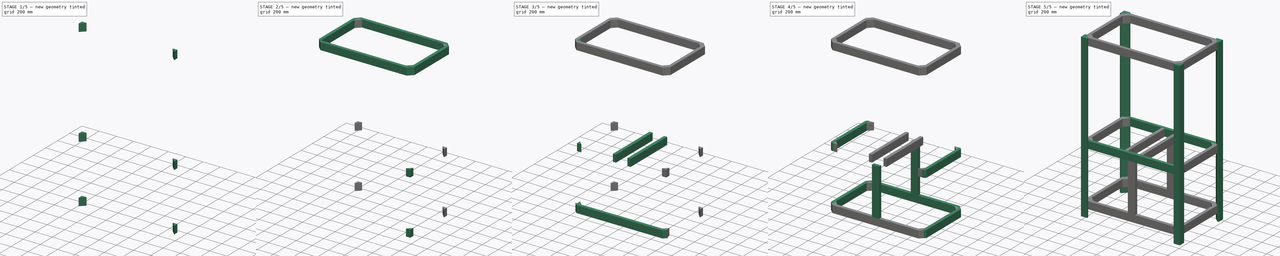
[diagram: build sequence overview — one tinted view per stage of 5, left to right]
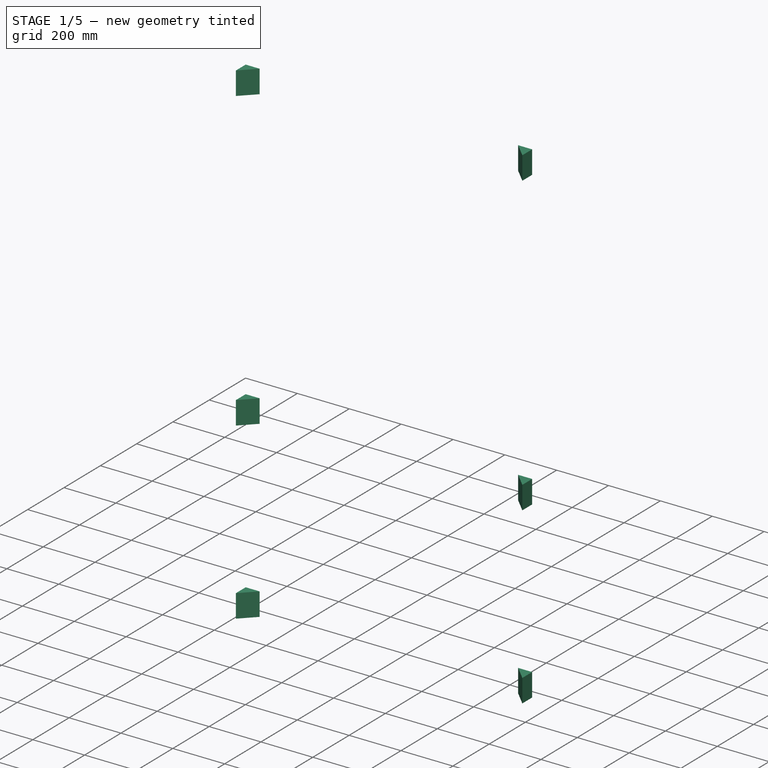
[diagram: stage 1 of 5 — iso view after this stage's code; geometry added in this stage tinted green]
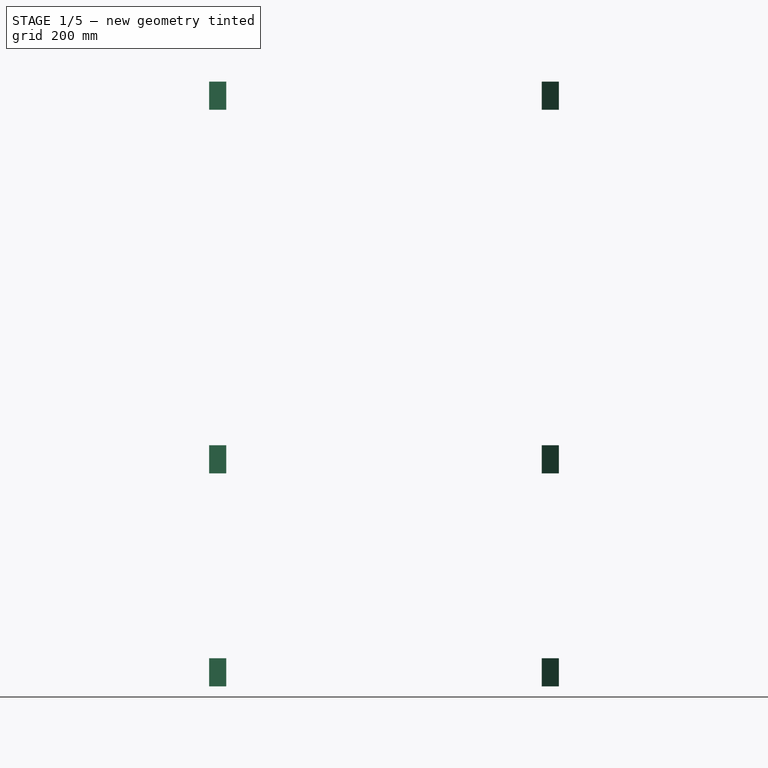
[diagram: stage 1 of 5 — front view after this stage's code; geometry added in this stage tinted green]
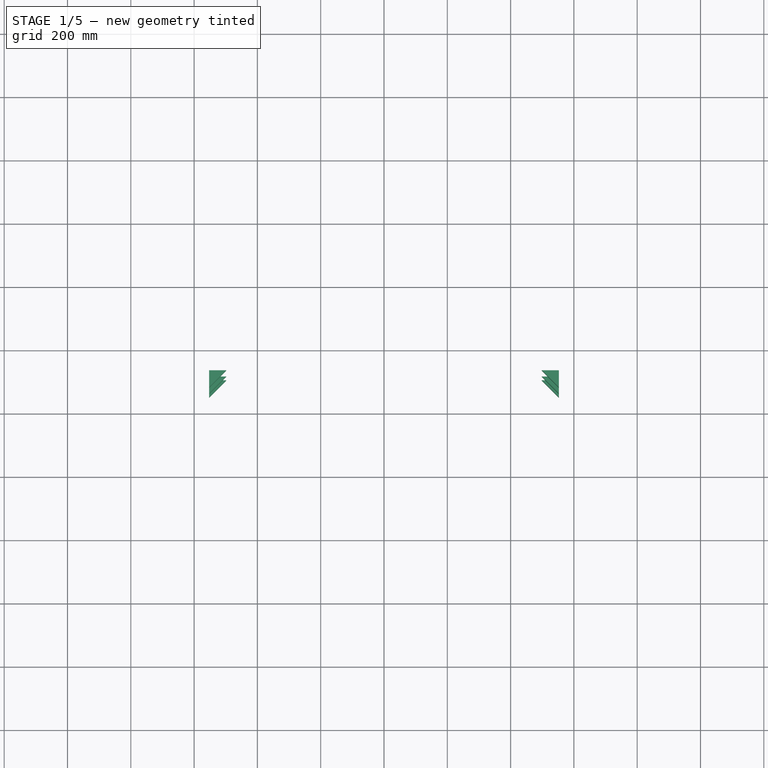
[diagram: stage 1 of 5 — top view after this stage's code; geometry added in this stage tinted green]
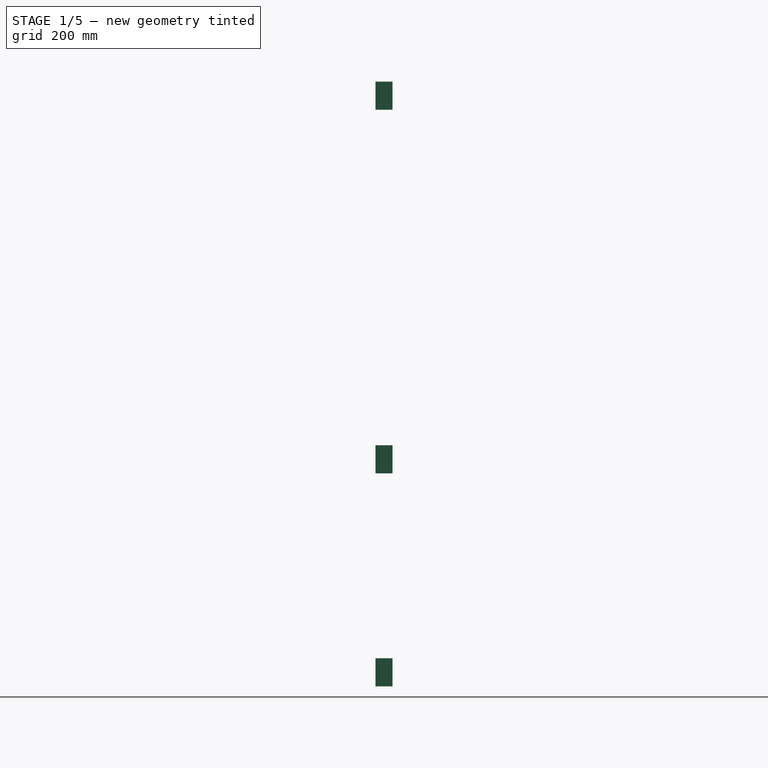
[diagram: stage 1 of 5 — right view after this stage's code; geometry added in this stage tinted green]
FCSTD DOCUMENT  (FreeCAD 0.16R6039 (Git))
Label: MiniMill Enclosure
License: CreativeCommons Attribution-ShareAlike
LicenseURL: http://creativecommons.org/licenses/by-sa/4.0/
objects: Sketcher::SketchObject×32, PartDesign::Pad×32, App::DocumentObjectGroup×3
note: 96 computed .brp shape members not serialized (recipe doc carries the construction recipe); baked Part::Feature solids carry a one-line shape summary decoded from their .brp

FEATURE [Sketcher::SketchObject] Sketch040
  Placement = pos=(0,0,88.9) rot=(0,0,1;0rad)
  sketch-geometry (3):
    g0: LineSegment StartX=-552.45 StartY=704.85 StartZ=0 EndX=-552.45 EndY=650.968 EndZ=0
    g1: LineSegment StartX=-552.45 StartY=650.968 StartZ=0 EndX=-498.568 EndY=704.85 EndZ=0
    g2: LineSegment StartX=-498.568 StartY=704.85 StartZ=0 EndX=-552.45 EndY=704.85 EndZ=0
  constraints (9):
    c: Coincident(g0,g1)
    c: Coincident(g1,g2)
    c: Coincident(g0,g2)
    c: Horizontal(g2)
    c: Vertical(g0)
    c: Equal(g0,g2)
    c: Distance(g0,g1) = 38.1
    c: DistanceX(g-1,g0) = -552.45
    c: DistanceY(g-1,g0) = 704.85
FEATURE [PartDesign::Pad] Pad041  label="Lower Back Left Corner Brace"
  Length = 88.9
  Length2 = 100
  Placement = pos=(0,0,88.9) rot=(0,0,1;0rad)
  Sketch = -> Sketch040
  Type = 0
FEATURE [Sketcher::SketchObject] Sketch041
  Placement = pos=(0,0,762) rot=(0,0,1;0rad)
  sketch-geometry (3):
    g0: LineSegment StartX=-552.45 StartY=704.85 StartZ=0 EndX=-552.45 EndY=650.968 EndZ=0
    g1: LineSegment StartX=-552.45 StartY=650.968 StartZ=0 EndX=-498.568 EndY=704.85 EndZ=0
    g2: LineSegment StartX=-498.568 StartY=704.85 StartZ=0 EndX=-552.45 EndY=704.85 EndZ=0
  constraints (9):
    c: Coincident(g0,g1)
    c: Coincident(g1,g2)
    c: Coincident(g0,g2)
    c: Horizontal(g2)
    c: Vertical(g0)
    c: Equal(g0,g2)
    c: Distance(g0,g1) = 38.1
    c: DistanceX(g-1,g0) = -552.45
    c: DistanceY(g-1,g0) = 704.85
FEATURE [PartDesign::Pad] Pad042  label="Mid Back Left Corner Brace"
  Length = 88.9
  Length2 = 100
  Placement = pos=(0,0,762) rot=(0,0,1;0rad)
  Sketch = -> Sketch041
  Type = 0
FEATURE [Sketcher::SketchObject] Sketch042
  Placement = pos=(0,0,1911) rot=(0,0,1;0rad)
  sketch-geometry (3):
    g0: LineSegment StartX=-552.45 StartY=704.85 StartZ=0 EndX=-552.45 EndY=650.968 EndZ=0
    g1: LineSegment StartX=-552.45 StartY=650.968 StartZ=0 EndX=-498.568 EndY=704.85 EndZ=0
    g2: LineSegment StartX=-498.568 StartY=704.85 StartZ=0 EndX=-552.45 EndY=704.85 EndZ=0
  constraints (9):
    c: Coincident(g0,g1)
    c: Coincident(g1,g2)
    c: Coincident(g0,g2)
    c: Horizontal(g2)
    c: Vertical(g0)
    c: Equal(g0,g2)
    c: Distance(g0,g1) = 38.1
    c: DistanceX(g-1,g0) = -552.45
    c: DistanceY(g-1,g0) = 704.85
FEATURE [PartDesign::Pad] Pad043  label="Top Back Left Corner Brace"
  Length = 88.9
  Length2 = 100
  Placement = pos=(0,0,1911) rot=(0,0,1;0rad)
  Sketch = -> Sketch042
  Type = 0
FEATURE [Sketcher::SketchObject] Sketch044
  Placement = pos=(0,0,88.9) rot=(0,0,1;0rad)
  sketch-geometry (3):
    g0: LineSegment StartX=498.568 StartY=704.85 StartZ=0 EndX=552.45 EndY=704.85 EndZ=0
    g1: LineSegment StartX=552.45 StartY=704.85 StartZ=0 EndX=552.45 EndY=650.968 EndZ=0
    g2: LineSegment StartX=552.45 StartY=650.968 StartZ=0 EndX=498.568 EndY=704.85 EndZ=0
  constraints (9):
    c: Coincident(g0,g1)
    c: Coincident(g1,g2)
    c: Coincident(g2,g0)
    c: Horizontal(g0)
    c: Vertical(g1)
    c: Equal(g0,g1)
    c: Distance(g0,g2) = 38.1
    c: DistanceX(g-1,g0) = 552.45
    c: DistanceY(g-1,g0) = 704.85
FEATURE [PartDesign::Pad] Pad045  label="Lower Back Right Corner Brace"
  Length = 88.9
  Length2 = 100
  Placement = pos=(0,0,88.9) rot=(0,0,1;0rad)
  Sketch = -> Sketch044
  Type = 0
FEATURE [App::DocumentObjectGroup] Group001  label="Lower Platform"
  Group = -> [Pad018,Pad020,Pad021,Pad023,Pad029,Pad039,Pad041,Pad045]
FEATURE [Sketcher::SketchObject] Sketch045
  Placement = pos=(0,0,762) rot=(0,0,1;0rad)
  sketch-geometry (3):
    g0: LineSegment StartX=498.568 StartY=704.85 StartZ=0 EndX=552.45 EndY=704.85 EndZ=0
    g1: LineSegment StartX=552.45 StartY=704.85 StartZ=0 EndX=552.45 EndY=650.968 EndZ=0
    g2: LineSegment StartX=552.45 StartY=650.968 StartZ=0 EndX=498.568 EndY=704.85 EndZ=0
  constraints (9):
    c: Coincident(g0,g1)
    c: Coincident(g1,g2)
    c: Coincident(g2,g0)
    c: Horizontal(g0)
    c: Vertical(g1)
    c: Equal(g0,g1)
    c: Distance(g0,g2) = 38.1
    c: DistanceX(g-1,g0) = 552.45
    c: DistanceY(g-1,g0) = 704.85
FEATURE [PartDesign::Pad] Pad046  label="Mid Back Right Corner Brace"
  Length = 88.9
  Length2 = 100
  Placement = pos=(0,0,762) rot=(0,0,1;0rad)
  Sketch = -> Sketch045
  Type = 0
FEATURE [App::DocumentObjectGroup] Group  label="Mill Base"
  Group = -> [Pad009,Pad010,Pad013,Pad015,Pad026,Pad027,Pad030,Pad038,Pad042,Pad046]
FEATURE [Sketcher::SketchObject] Sketch046
  Placement = pos=(0,0,1911) rot=(0,0,1;0rad)
  sketch-geometry (3):
    g0: LineSegment StartX=498.568 StartY=704.85 StartZ=0 EndX=552.45 EndY=704.85 EndZ=0
    g1: LineSegment StartX=552.45 StartY=704.85 StartZ=0 EndX=552.45 EndY=650.968 EndZ=0
    g2: LineSegment StartX=552.45 StartY=650.968 StartZ=0 EndX=498.568 EndY=704.85 EndZ=0
  constraints (9):
    c: Coincident(g0,g1)
    c: Coincident(g1,g2)
    c: Coincident(g2,g0)
    c: Horizontal(g0)
    c: Vertical(g1)
    c: Equal(g0,g1)
    c: Distance(g0,g2) = 38.1
    c: DistanceX(g-1,g0) = 552.45
    c: DistanceY(g-1,g0) = 704.85
FEATURE [PartDesign::Pad] Pad047  label="Top Back Right Corner Brace"
  Length = 88.9
  Length2 = 100
  Placement = pos=(0,0,1911) rot=(0,0,1;0rad)
  Sketch = -> Sketch046
  Type = 0
FEATURE [App::DocumentObjectGroup] Group002  label="Top Platform"
  Group = -> [Pad031,Pad032,Pad033,Pad034,Pad035,Pad037,Pad043,Pad047]
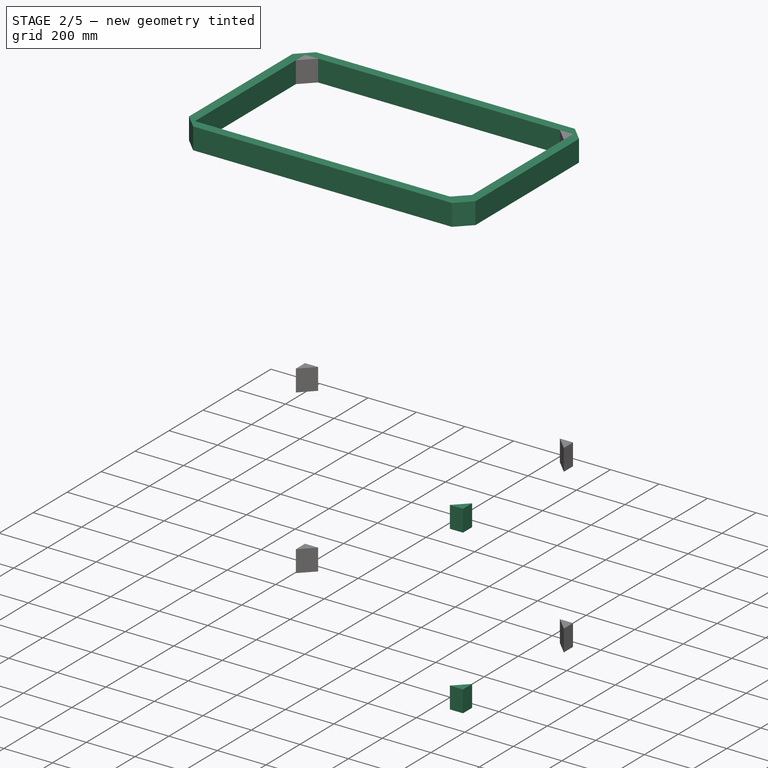
[diagram: stage 2 of 5 — iso view after this stage's code; geometry added in this stage tinted green]
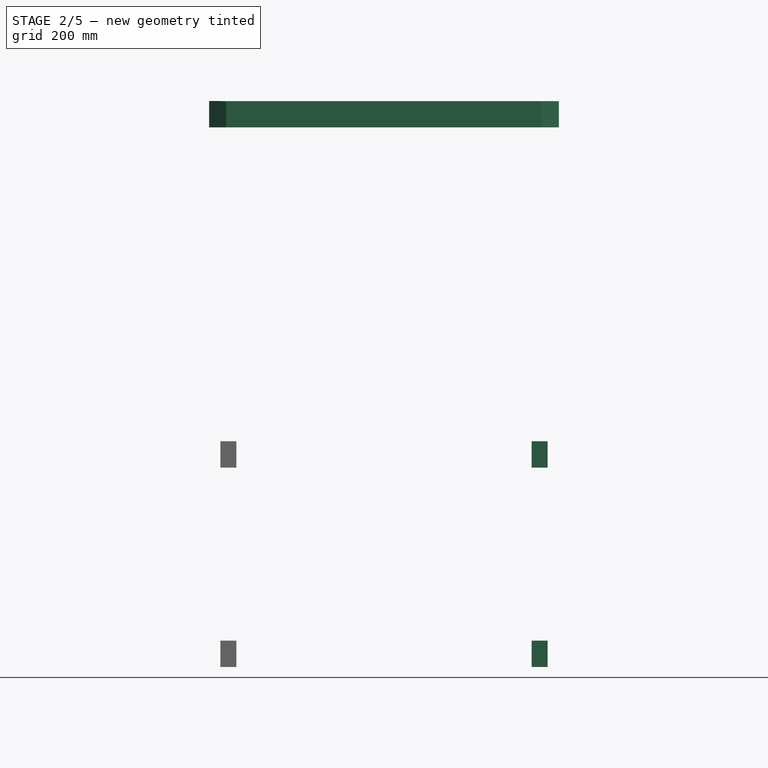
[diagram: stage 2 of 5 — front view after this stage's code; geometry added in this stage tinted green]
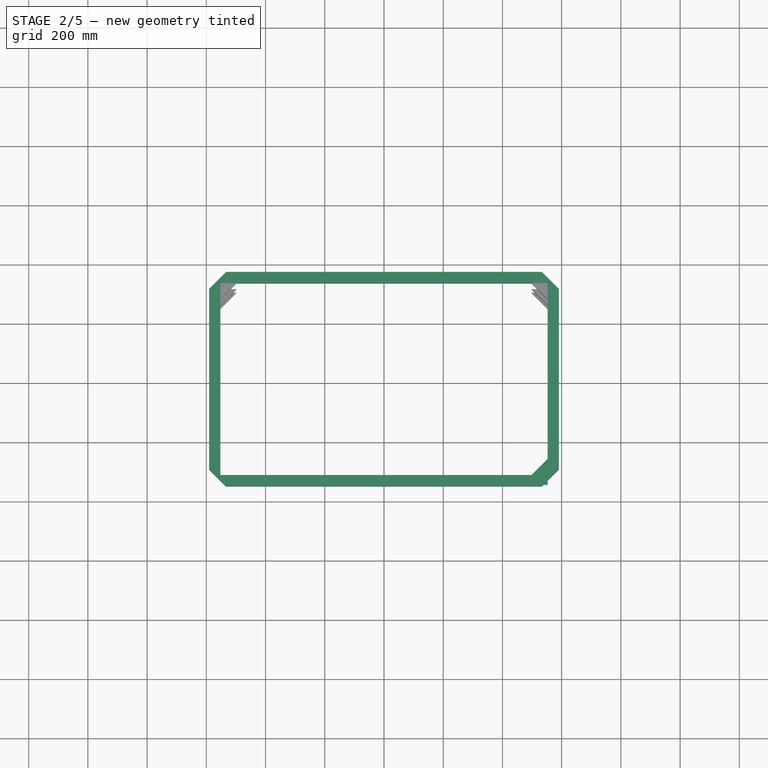
[diagram: stage 2 of 5 — top view after this stage's code; geometry added in this stage tinted green]
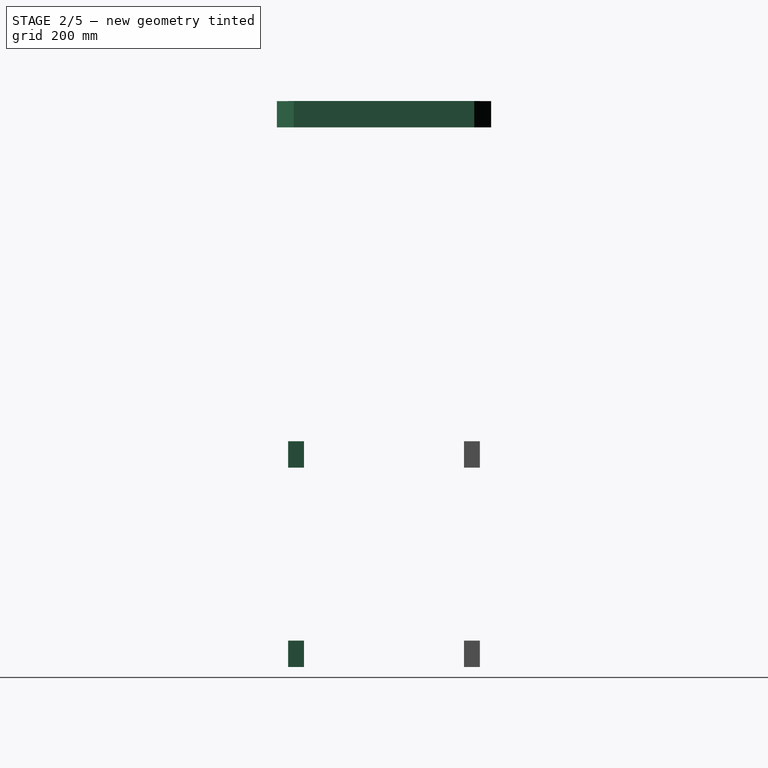
[diagram: stage 2 of 5 — right view after this stage's code; geometry added in this stage tinted green]
FEATURE [Sketcher::SketchObject] Sketch031
  Placement = pos=(0,0,1911) rot=(0,0,1;0rad)
  sketch-geometry (4):
    g0: LineSegment StartX=-571.5 StartY=57.15 StartZ=0 EndX=-533.4 EndY=19.05 EndZ=0
    g1: LineSegment StartX=-533.4 StartY=19.05 StartZ=0 EndX=533.4 EndY=19.05 EndZ=0
    g2: LineSegment StartX=533.4 StartY=19.05 StartZ=0 EndX=571.5 EndY=57.15 EndZ=0
    g3: LineSegment StartX=571.5 StartY=57.15 StartZ=0 EndX=-571.5 EndY=57.15 EndZ=0
  constraints (12):
    c: Coincident(g0,g1)
    c: Coincident(g1,g2)
    c: Coincident(g2,g3)
    c: Coincident(g3,g0)
    c: Horizontal(g1)
    c: Horizontal(g3)
    c: Symmetric(g0,g1,g-2)
    c: Angle(g2,g-1) = 2.35619
    c: Angle(g-1,g0) = 2.35619
    c: DistanceX(g1) = 1066.8
    c: DistanceY(g-1,g0) = 19.05
    c: DistanceY(g1,g2) = 38.1
FEATURE [PartDesign::Pad] Pad032  label="Top Front"
  Length = 88.9
  Length2 = 100
  Placement = pos=(0,0,1911) rot=(0,0,1;0rad)
  Sketch = -> Sketch031
  Type = 0
FEATURE [Sketcher::SketchObject] Sketch032
  Placement = pos=(0,0,1911) rot=(0,0,1;0rad)
  sketch-geometry (4):
    g0: LineSegment StartX=-533.4 StartY=742.95 StartZ=0 EndX=-571.5 EndY=704.85 EndZ=0
    g1: LineSegment StartX=-571.5 StartY=704.85 StartZ=0 EndX=571.5 EndY=704.85 EndZ=0
    g2: LineSegment StartX=571.5 StartY=704.85 StartZ=0 EndX=533.4 EndY=742.95 EndZ=0
    g3: LineSegment StartX=533.4 StartY=742.95 StartZ=0 EndX=-533.4 EndY=742.95 EndZ=0
  constraints (12):
    c: Coincident(g0,g1)
    c: Coincident(g1,g2)
    c: Coincident(g2,g3)
    c: Coincident(g3,g0)
    c: Horizontal(g1)
    c: Horizontal(g3)
    c: Symmetric(g0,g1,g-2)
    c: Angle(g2,g-1) = 0.785398
    c: Angle(g-1,g0) = 0.785398
    c: DistanceY(g1,g2) = 38.1
    c: DistanceY(g-1,g2) = 742.95
    c: DistanceX(g3) = -1066.8
FEATURE [PartDesign::Pad] Pad033  label="Top  Back"
  Length = 88.9
  Length2 = 100
  Placement = pos=(0,0,1911) rot=(0,0,1;0rad)
  Sketch = -> Sketch032
  Type = 0
FEATURE [Sketcher::SketchObject] Sketch033
  Placement = pos=(0,0,1911) rot=(0,0,1;0rad)
  sketch-geometry (6):
    g0: LineSegment StartX=-590.55 StartY=685.8 StartZ=0 EndX=-590.55 EndY=76.2 EndZ=0
    g1: LineSegment StartX=-552.45 StartY=57.15 StartZ=0 EndX=-552.45 EndY=704.85 EndZ=0
    g2: LineSegment StartX=-552.45 StartY=704.85 StartZ=0 EndX=-571.5 EndY=704.85 EndZ=0
    g3: LineSegment StartX=-571.5 StartY=704.85 StartZ=0 EndX=-590.55 EndY=685.8 EndZ=0
    g4: LineSegment StartX=-590.55 StartY=76.2 StartZ=0 EndX=-571.5 EndY=57.15 EndZ=0
    g5: LineSegment StartX=-571.5 StartY=57.15 StartZ=0 EndX=-552.45 EndY=57.15 EndZ=0
  constraints (18):
    c: Vertical(g0)
    c: Vertical(g1)
    c: DistanceY(g1) = 647.7
    c: DistanceY(g-1,g0) = 76.2
    c: Coincident(g2,g3)
    c: Coincident(g0,g3)
    c: Coincident(g2,g1)
    c: Horizontal(g2)
    c: Angle(g0,g3) = 2.35619
    c: DistanceX(g-1,g0) = -590.55
    c: DistanceY(g-1,g0) = 685.8
    c: Coincident(g4,g5)
    c: Horizontal(g5)
    c: Coincident(g1,g5)
    c: Coincident(g4,g0)
    c: Angle(g4,g0) = 2.35619
    c: DistanceX(g1,g0) = -38.1
    c: DistanceY(g-1,g1) = 57.15
FEATURE [PartDesign::Pad] Pad034  label="Top Left"
  Length = 89
  Length2 = 100
  Placement = pos=(0,0,1911) rot=(0,0,1;0rad)
  Sketch = -> Sketch033
  Type = 0
FEATURE [Sketcher::SketchObject] Sketch034
  Placement = pos=(0,0,1911) rot=(0,0,1;0rad)
  sketch-geometry (6):
    g0: LineSegment StartX=552.45 StartY=704.85 StartZ=0 EndX=571.5 EndY=704.85 EndZ=0
    g1: LineSegment StartX=571.5 StartY=704.85 StartZ=0 EndX=590.55 EndY=685.8 EndZ=0
    g2: LineSegment StartX=590.55 StartY=685.8 StartZ=0 EndX=590.55 EndY=76.2 EndZ=0
    g3: LineSegment StartX=590.55 StartY=76.2 StartZ=0 EndX=571.5 EndY=57.15 EndZ=0
    g4: LineSegment StartX=571.5 StartY=57.15 StartZ=0 EndX=552.45 EndY=57.15 EndZ=0
    g5: LineSegment StartX=552.45 StartY=57.15 StartZ=0 EndX=552.45 EndY=704.85 EndZ=0
  constraints (18):
    c: Coincident(g0,g1)
    c: Coincident(g1,g2)
    c: Coincident(g2,g3)
    c: Coincident(g3,g4)
    c: Coincident(g4,g5)
    c: Coincident(g5,g0)
    c: Vertical(g5)
    c: Vertical(g2)
    c: Horizontal(g0)
    c: Horizontal(g4)
    c: Angle(g0,g1) = 2.35619
    c: Angle(g3,g4) = 2.35619
    c: DistanceX(g-1,g2) = 590.55
    c: DistanceX(g4,g2) = 38.1
    c: DistanceY(g-1,g4) = 57.15
    c: DistanceY(g2) = 76.2
    c: DistanceY(g-1,g0) = 704.85
    c: DistanceY(g-1,g1) = 685.8
FEATURE [PartDesign::Pad] Pad035  label="Top Right Side"
  Length = 88.9
  Length2 = 100
  Placement = pos=(0,0,1911) rot=(0,0,1;0rad)
  Sketch = -> Sketch034
  Type = 0
FEATURE [Sketcher::SketchObject] Sketch036
  Placement = pos=(0,0,1911) rot=(0,0,1;0rad)
  sketch-geometry (3):
    g0: LineSegment StartX=552.45 StartY=111.032 StartZ=0 EndX=552.45 EndY=57.15 EndZ=0
    g1: LineSegment StartX=552.45 StartY=57.15 StartZ=0 EndX=498.568 EndY=57.15 EndZ=0
    g2: LineSegment StartX=498.568 StartY=57.15 StartZ=0 EndX=552.45 EndY=111.032 EndZ=0
  constraints (9):
    c: Coincident(g0,g1)
    c: Coincident(g1,g2)
    c: Coincident(g2,g0)
    c: Vertical(g0)
    c: Horizontal(g1)
    c: Equal(g1,g0)
    c: Distance(g0,g2) = 38.1
    c: DistanceX(g-1,g0) = 552.45
    c: DistanceY(g-1,g0) = 57.15
FEATURE [PartDesign::Pad] Pad037  label="Top Right Corner Brace"
  Length = 88.9
  Length2 = 100
  Placement = pos=(0,0,1911) rot=(0,0,1;0rad)
  Sketch = -> Sketch036
  Type = 0
FEATURE [Sketcher::SketchObject] Sketch037
  Placement = pos=(0,0,762) rot=(0,0,1;0rad)
  sketch-geometry (3):
    g0: LineSegment StartX=552.45 StartY=111.032 StartZ=0 EndX=552.45 EndY=57.15 EndZ=0
    g1: LineSegment StartX=552.45 StartY=57.15 StartZ=0 EndX=498.568 EndY=57.15 EndZ=0
    g2: LineSegment StartX=498.568 StartY=57.15 StartZ=0 EndX=552.45 EndY=111.032 EndZ=0
  constraints (9):
    c: Coincident(g0,g1)
    c: Coincident(g1,g2)
    c: Coincident(g2,g0)
    c: Vertical(g0)
    c: Horizontal(g1)
    c: Equal(g1,g0)
    c: Distance(g0,g2) = 38.1
    c: DistanceX(g-1,g0) = 552.45
    c: DistanceY(g-1,g0) = 57.15
FEATURE [PartDesign::Pad] Pad038  label="Mid Right Front Corner Brace"
  Length = 88.9
  Length2 = 100
  Placement = pos=(0,0,762) rot=(0,0,1;0rad)
  Sketch = -> Sketch037
  Type = 0
FEATURE [Sketcher::SketchObject] Sketch038
  Placement = pos=(0,0,88.9) rot=(0,0,1;0rad)
  sketch-geometry (3):
    g0: LineSegment StartX=552.45 StartY=111.032 StartZ=0 EndX=552.45 EndY=57.15 EndZ=0
    g1: LineSegment StartX=552.45 StartY=57.15 StartZ=0 EndX=498.568 EndY=57.15 EndZ=0
    g2: LineSegment StartX=498.568 StartY=57.15 StartZ=0 EndX=552.45 EndY=111.032 EndZ=0
  constraints (9):
    c: Coincident(g0,g1)
    c: Coincident(g1,g2)
    c: Coincident(g2,g0)
    c: Vertical(g0)
    c: Horizontal(g1)
    c: Equal(g1,g0)
    c: Distance(g0,g2) = 38.1
    c: DistanceX(g-1,g0) = 552.45
    c: DistanceY(g-1,g0) = 57.15
FEATURE [PartDesign::Pad] Pad039  label="Lower Right Front Corner Brace"
  Length = 88.9
  Length2 = 100
  Placement = pos=(0,0,88.9) rot=(0,0,1;0rad)
  Sketch = -> Sketch038
  Type = 0
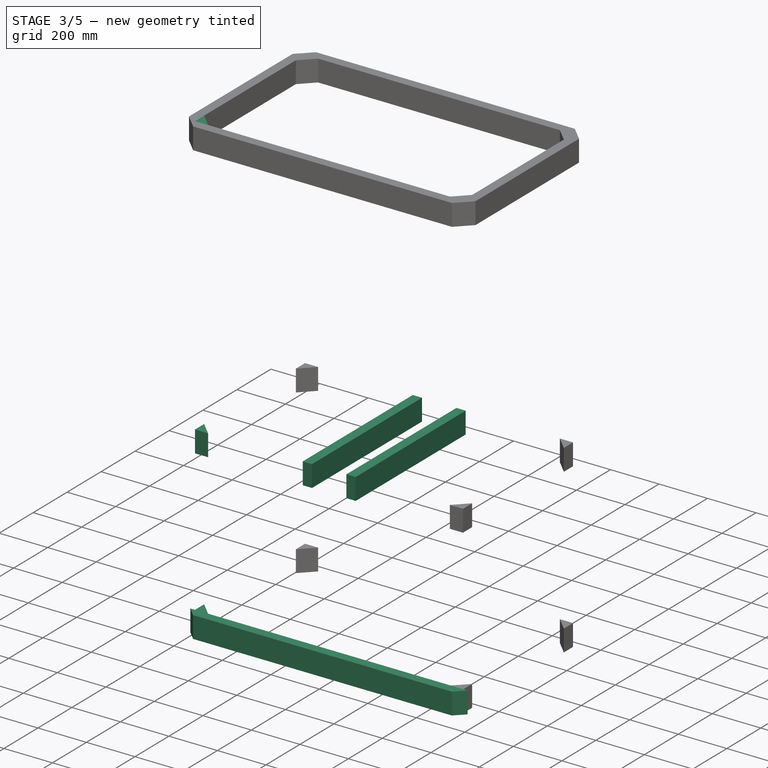
[diagram: stage 3 of 5 — iso view after this stage's code; geometry added in this stage tinted green]
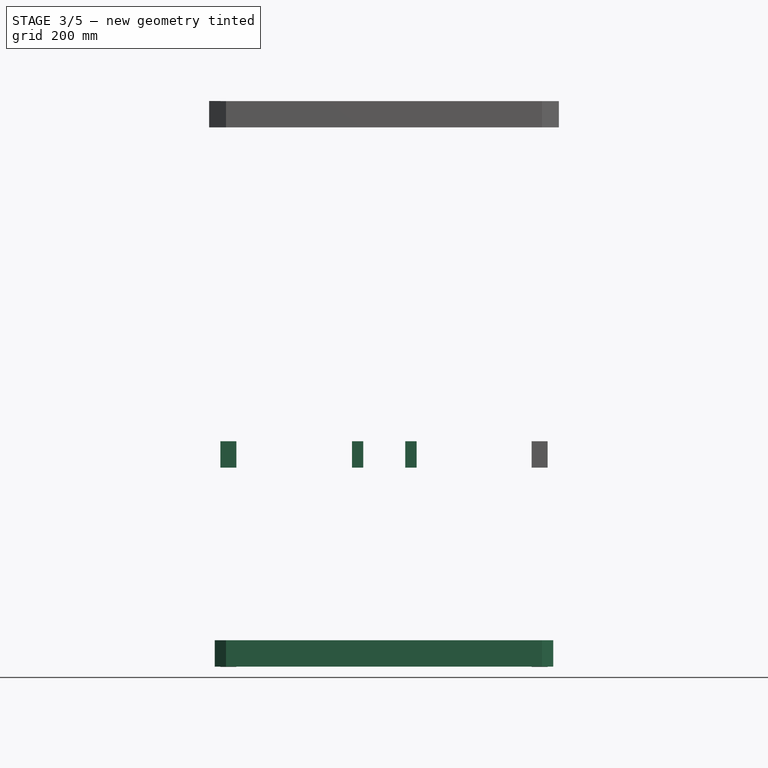
[diagram: stage 3 of 5 — front view after this stage's code; geometry added in this stage tinted green]
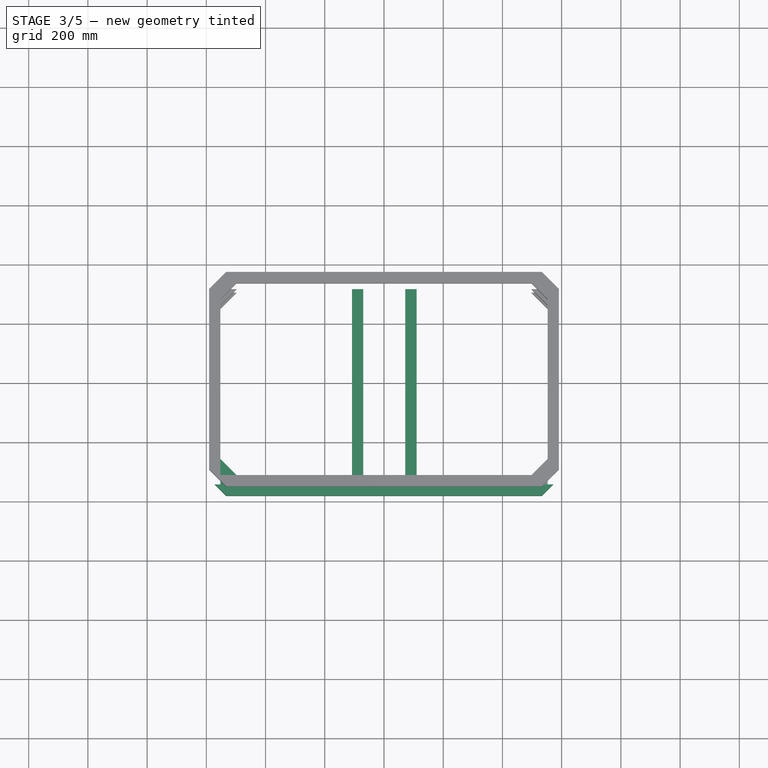
[diagram: stage 3 of 5 — top view after this stage's code; geometry added in this stage tinted green]
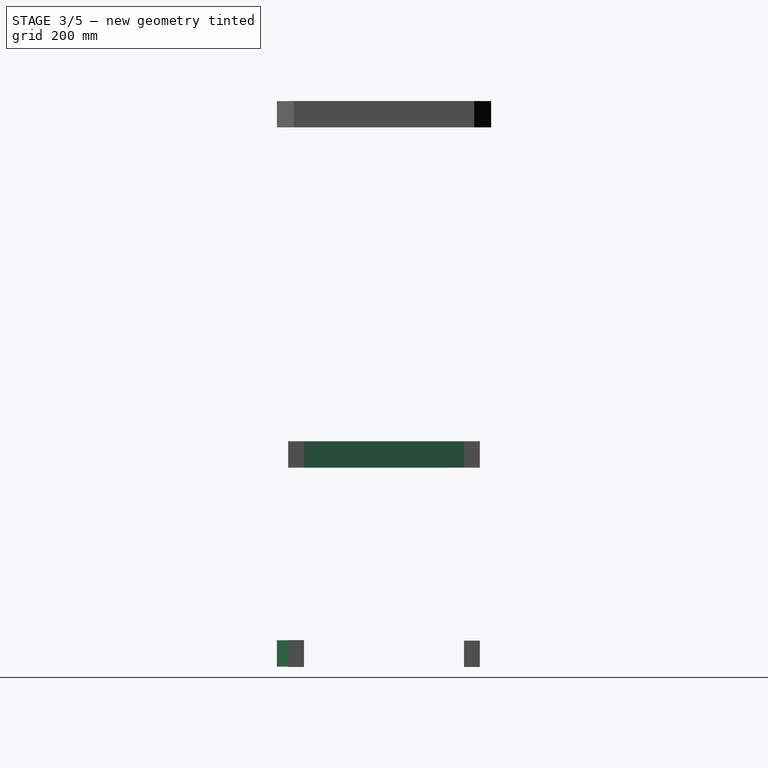
[diagram: stage 3 of 5 — right view after this stage's code; geometry added in this stage tinted green]
FEATURE [Sketcher::SketchObject] Sketch022
  Placement = pos=(0,0,90) rot=(0,0,1;0rad)
  sketch-geometry (4):
    g0: LineSegment StartX=-571.5 StartY=57.15 StartZ=0 EndX=-533.4 EndY=19.05 EndZ=0
    g1: LineSegment StartX=-533.4 StartY=19.05 StartZ=0 EndX=533.4 EndY=19.05 EndZ=0
    g2: LineSegment StartX=533.4 StartY=19.05 StartZ=0 EndX=571.5 EndY=57.15 EndZ=0
    g3: LineSegment StartX=571.5 StartY=57.15 StartZ=0 EndX=-571.5 EndY=57.15 EndZ=0
  constraints (12):
    c: Coincident(g0,g1)
    c: Coincident(g1,g2)
    c: Coincident(g2,g3)
    c: Coincident(g3,g0)
    c: Horizontal(g1)
    c: Horizontal(g3)
    c: Symmetric(g0,g1,g-2)
    c: Angle(g2,g-1) = 2.35619
    c: Angle(g-1,g0) = 2.35619
    c: DistanceX(g1) = 1066.8
    c: DistanceY(g-1,g0) = 19.05
    c: DistanceY(g1,g2) = 38.1
FEATURE [PartDesign::Pad] Pad023  label="Lower Front"
  Length = 88.9
  Length2 = 100
  Placement = pos=(0,0,90) rot=(0,0,1;0rad)
  Sketch = -> Sketch022
  Type = 0
FEATURE [Sketcher::SketchObject] Sketch025
  Placement = pos=(0,0,762) rot=(0,0,1;0rad)
  sketch-geometry (4):
    g0: LineSegment StartX=-108.1 StartY=704.85 StartZ=0 EndX=-70 EndY=704.85 EndZ=0
    g1: LineSegment StartX=-70 StartY=704.85 StartZ=0 EndX=-70 EndY=57.15 EndZ=0
    g2: LineSegment StartX=-70 StartY=57.15 StartZ=0 EndX=-108.1 EndY=57.15 EndZ=0
    g3: LineSegment StartX=-108.1 StartY=57.15 StartZ=0 EndX=-108.1 EndY=704.85 EndZ=0
  constraints (12):
    c: Coincident(g0,g1)
    c: Coincident(g1,g2)
    c: Coincident(g2,g3)
    c: Coincident(g3,g0)
    c: Horizontal(g0)
    c: Horizontal(g2)
    c: Vertical(g1)
    c: Vertical(g3)
    c: DistanceY(g1) = -647.7
    c: DistanceX(g0) = 38.1
    c: DistanceY(g-1,g1) = 57.15
    c: DistanceX(g-1,g1) = -70
FEATURE [PartDesign::Pad] Pad026  label="Left Mill Mount"
  Length = 88.9
  Length2 = 100
  Placement = pos=(0,0,762) rot=(0,0,1;0rad)
  Sketch = -> Sketch025
  Type = 0
FEATURE [Sketcher::SketchObject] Sketch026
  Placement = pos=(0,0,762) rot=(0,0,1;0rad)
  sketch-geometry (4):
    g0: LineSegment StartX=71.9 StartY=704.85 StartZ=0 EndX=110 EndY=704.85 EndZ=0
    g1: LineSegment StartX=110 StartY=704.85 StartZ=0 EndX=110 EndY=57.15 EndZ=0
    g2: LineSegment StartX=110 StartY=57.15 StartZ=0 EndX=71.9 EndY=57.15 EndZ=0
    g3: LineSegment StartX=71.9 StartY=57.15 StartZ=0 EndX=71.9 EndY=704.85 EndZ=0
  constraints (12):
    c: Coincident(g0,g1)
    c: Coincident(g1,g2)
    c: Coincident(g2,g3)
    c: Coincident(g3,g0)
    c: Horizontal(g0)
    c: Horizontal(g2)
    c: Vertical(g1)
    c: Vertical(g3)
    c: DistanceY(g1) = -647.7
    c: DistanceX(g0) = 38.1
    c: DistanceY(g-1,g1) = 57.15
    c: DistanceX(g-1,g1) = 110
FEATURE [PartDesign::Pad] Pad027  label="Right Mill Mount"
  Length = 88.9
  Length2 = 100
  Placement = pos=(0,0,762) rot=(0,0,1;0rad)
  Sketch = -> Sketch026
  Type = 0
FEATURE [Sketcher::SketchObject] Sketch028
  Placement = pos=(0,0,90) rot=(0,0,1;0rad)
  sketch-geometry (3):
    g0: LineSegment StartX=-552.45 StartY=111.032 StartZ=0 EndX=-552.45 EndY=57.15 EndZ=0
    g1: LineSegment StartX=-552.45 StartY=57.15 StartZ=0 EndX=-498.568 EndY=57.15 EndZ=0
    g2: LineSegment StartX=-498.568 StartY=57.15 StartZ=0 EndX=-552.45 EndY=111.032 EndZ=0
  constraints (9):
    c: Coincident(g0,g1)
    c: Coincident(g1,g2)
    c: Coincident(g2,g0)
    c: Vertical(g0)
    c: Horizontal(g1)
    c: Distance(g0,g2) = 38.1
    c: Equal(g1,g0)
    c: DistanceX(g-1,g0) = -552.45
    c: DistanceY(g-1,g0) = 57.15
FEATURE [PartDesign::Pad] Pad029  label="Left Front Corner Brace"
  Length = 88.9
  Length2 = 100
  Placement = pos=(0,0,90) rot=(0,0,1;0rad)
  Sketch = -> Sketch028
  Type = 0
FEATURE [Sketcher::SketchObject] Sketch029
  Placement = pos=(0,0,762) rot=(0,0,1;0rad)
  sketch-geometry (3):
    g0: LineSegment StartX=-552.45 StartY=111.032 StartZ=0 EndX=-552.45 EndY=57.15 EndZ=0
    g1: LineSegment StartX=-552.45 StartY=57.15 StartZ=0 EndX=-498.568 EndY=57.15 EndZ=0
    g2: LineSegment StartX=-498.568 StartY=57.15 StartZ=0 EndX=-552.45 EndY=111.032 EndZ=0
  constraints (9):
    c: Coincident(g0,g1)
    c: Coincident(g1,g2)
    c: Coincident(g2,g0)
    c: Vertical(g0)
    c: Horizontal(g1)
    c: Distance(g0,g2) = 38.1
    c: Equal(g1,g0)
    c: DistanceX(g-1,g0) = -552.45
    c: DistanceY(g-1,g0) = 57.15
FEATURE [PartDesign::Pad] Pad030  label="Mid Left Front Corner Brace"
  Length = 88.9
  Length2 = 100
  Placement = pos=(0,0,762) rot=(0,0,1;0rad)
  Sketch = -> Sketch029
  Type = 0
FEATURE [Sketcher::SketchObject] Sketch030
  Placement = pos=(0,0,1911) rot=(0,0,1;0rad)
  sketch-geometry (3):
    g0: LineSegment StartX=-552.45 StartY=111.032 StartZ=0 EndX=-552.45 EndY=57.15 EndZ=0
    g1: LineSegment StartX=-552.45 StartY=57.15 StartZ=0 EndX=-498.568 EndY=57.15 EndZ=0
    g2: LineSegment StartX=-498.568 StartY=57.15 StartZ=0 EndX=-552.45 EndY=111.032 EndZ=0
  constraints (9):
    c: Coincident(g0,g1)
    c: Coincident(g1,g2)
    c: Coincident(g2,g0)
    c: Vertical(g0)
    c: Horizontal(g1)
    c: Distance(g0,g2) = 38.1
    c: Equal(g1,g0)
    c: DistanceX(g-1,g0) = -552.45
    c: DistanceY(g-1,g0) = 57.15
FEATURE [PartDesign::Pad] Pad031  label="Top Left Front Corner Brace"
  Length = 88.9
  Length2 = 100
  Placement = pos=(0,0,1911) rot=(0,0,1;0rad)
  Sketch = -> Sketch030
  Type = 0
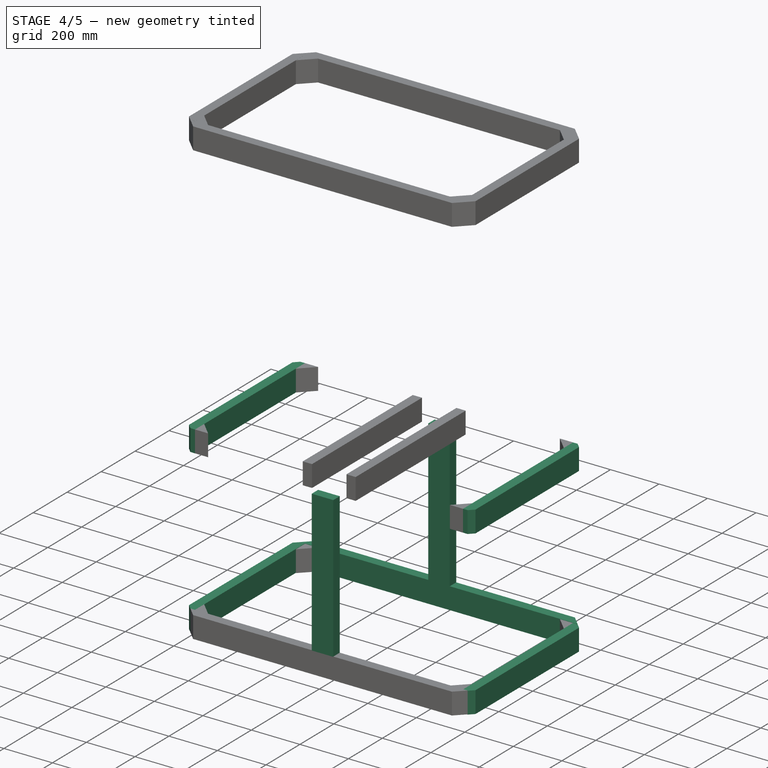
[diagram: stage 4 of 5 — iso view after this stage's code; geometry added in this stage tinted green]
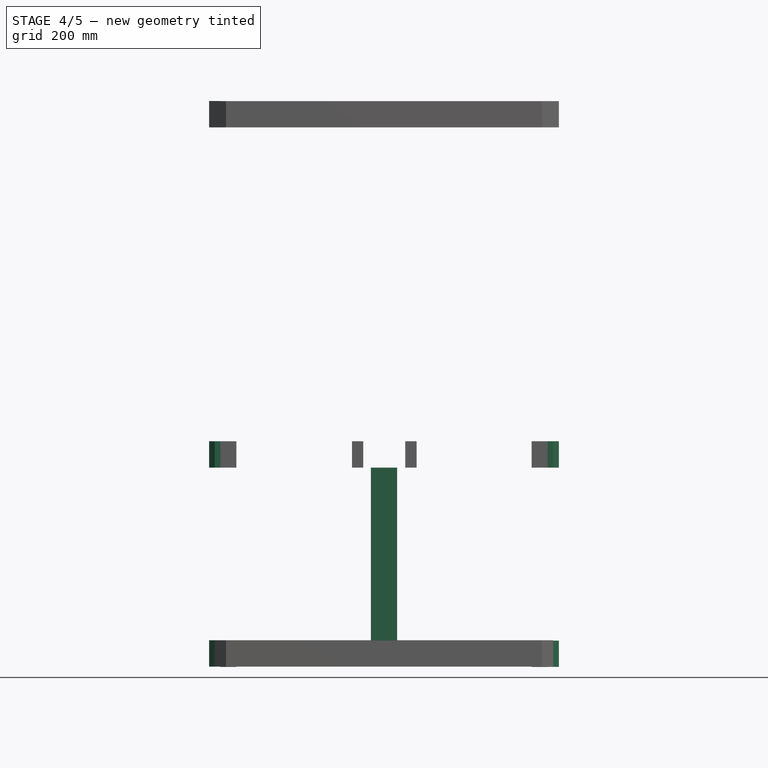
[diagram: stage 4 of 5 — front view after this stage's code; geometry added in this stage tinted green]
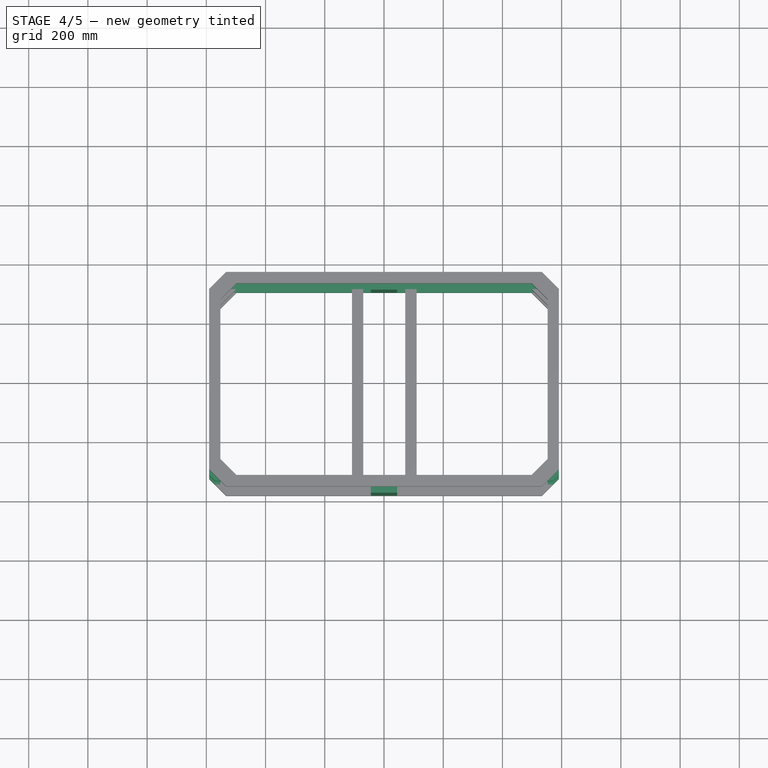
[diagram: stage 4 of 5 — top view after this stage's code; geometry added in this stage tinted green]
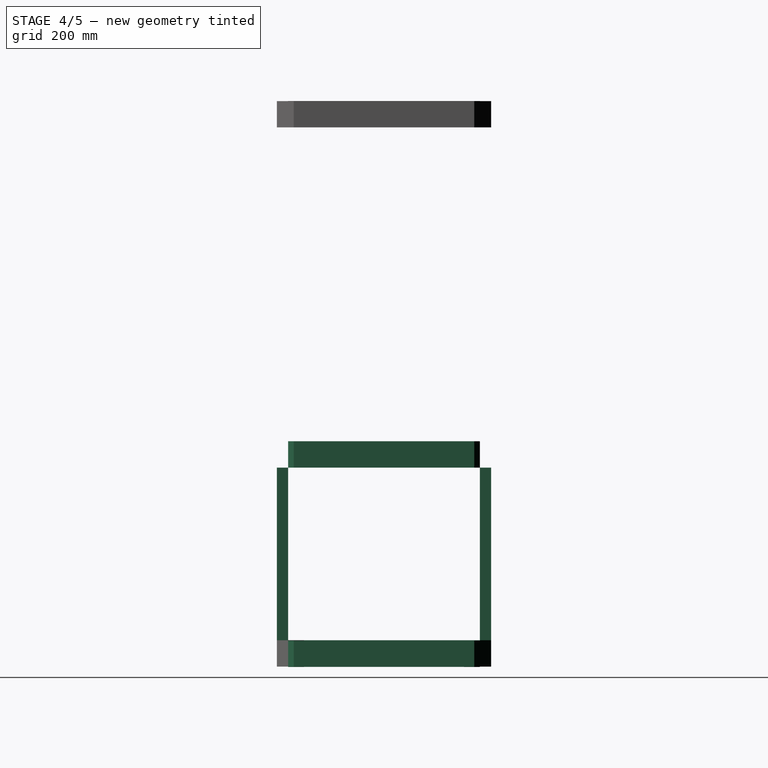
[diagram: stage 4 of 5 — right view after this stage's code; geometry added in this stage tinted green]
FEATURE [Sketcher::SketchObject] Sketch012
  Placement = pos=(0,0,762) rot=(0,0,1;0rad)
  sketch-geometry (6):
    g0: LineSegment StartX=-590.55 StartY=685.8 StartZ=0 EndX=-590.55 EndY=76.2 EndZ=0
    g1: LineSegment StartX=-552.45 StartY=57.15 StartZ=0 EndX=-552.45 EndY=704.85 EndZ=0
    g2: LineSegment StartX=-552.45 StartY=704.85 StartZ=0 EndX=-571.5 EndY=704.85 EndZ=0
    g3: LineSegment StartX=-571.5 StartY=704.85 StartZ=0 EndX=-590.55 EndY=685.8 EndZ=0
    g4: LineSegment StartX=-590.55 StartY=76.2 StartZ=0 EndX=-571.5 EndY=57.15 EndZ=0
    g5: LineSegment StartX=-571.5 StartY=57.15 StartZ=0 EndX=-552.45 EndY=57.15 EndZ=0
  constraints (18):
    c: Vertical(g0)
    c: Vertical(g1)
    c: DistanceY(g1) = 647.7
    c: DistanceY(g-1,g0) = 76.2
    c: Coincident(g2,g3)
    c: Coincident(g0,g3)
    c: Coincident(g2,g1)
    c: Horizontal(g2)
    c: Angle(g0,g3) = 2.35619
    c: DistanceX(g-1,g0) = -590.55
    c: DistanceY(g-1,g0) = 685.8
    c: Coincident(g4,g5)
    c: Horizontal(g5)
    c: Coincident(g1,g5)
    c: Coincident(g4,g0)
    c: Angle(g4,g0) = 2.35619
    c: DistanceX(g1,g0) = -38.1
    c: DistanceY(g-1,g1) = 57.15
FEATURE [PartDesign::Pad] Pad013  label="Mid Left Side"
  Length = 88.9
  Length2 = 100
  Placement = pos=(0,0,762) rot=(0,0,1;0rad)
  Sketch = -> Sketch012
  Type = 0
FEATURE [Sketcher::SketchObject] Sketch014
  Placement = pos=(0,0,762) rot=(0,0,1;0rad)
  sketch-geometry (6):
    g0: LineSegment StartX=552.45 StartY=704.85 StartZ=0 EndX=571.5 EndY=704.85 EndZ=0
    g1: LineSegment StartX=571.5 StartY=704.85 StartZ=0 EndX=590.55 EndY=685.8 EndZ=0
    g2: LineSegment StartX=590.55 StartY=685.8 StartZ=0 EndX=590.55 EndY=76.2 EndZ=0
    g3: LineSegment StartX=590.55 StartY=76.2 StartZ=0 EndX=571.5 EndY=57.15 EndZ=0
    g4: LineSegment StartX=571.5 StartY=57.15 StartZ=0 EndX=552.45 EndY=57.15 EndZ=0
    g5: LineSegment StartX=552.45 StartY=57.15 StartZ=0 EndX=552.45 EndY=704.85 EndZ=0
  constraints (18):
    c: Coincident(g0,g1)
    c: Coincident(g1,g2)
    c: Coincident(g2,g3)
    c: Coincident(g3,g4)
    c: Coincident(g4,g5)
    c: Coincident(g5,g0)
    c: Vertical(g5)
    c: Vertical(g2)
    c: Horizontal(g0)
    c: Horizontal(g4)
    c: Angle(g0,g1) = 2.35619
    c: Angle(g3,g4) = 2.35619
    c: DistanceX(g-1,g2) = 590.55
    c: DistanceX(g4,g2) = 38.1
    c: DistanceY(g-1,g4) = 57.15
    c: DistanceY(g2) = 76.2
    c: DistanceY(g-1,g0) = 704.85
    c: DistanceY(g-1,g1) = 685.8
FEATURE [PartDesign::Pad] Pad015  label="Mid Right Side"
  Length = 88.9
  Length2 = 100
  Placement = pos=(0,0,762) rot=(0,0,1;0rad)
  Sketch = -> Sketch014
  Type = 0
FEATURE [Sketcher::SketchObject] Sketch017
  Placement = pos=(0,0,90) rot=(0,0,1;0rad)
  sketch-geometry (4):
    g0: LineSegment StartX=-533.4 StartY=742.95 StartZ=0 EndX=-571.5 EndY=704.85 EndZ=0
    g1: LineSegment StartX=-571.5 StartY=704.85 StartZ=0 EndX=571.5 EndY=704.85 EndZ=0
    g2: LineSegment StartX=571.5 StartY=704.85 StartZ=0 EndX=533.4 EndY=742.95 EndZ=0
    g3: LineSegment StartX=533.4 StartY=742.95 StartZ=0 EndX=-533.4 EndY=742.95 EndZ=0
  constraints (12):
    c: Coincident(g0,g1)
    c: Coincident(g1,g2)
    c: Coincident(g2,g3)
    c: Coincident(g3,g0)
    c: Horizontal(g1)
    c: Horizontal(g3)
    c: Symmetric(g0,g1,g-2)
    c: Angle(g2,g-1) = 0.785398
    c: Angle(g-1,g0) = 0.785398
    c: DistanceY(g1,g2) = 38.1
    c: DistanceY(g-1,g2) = 742.95
    c: DistanceX(g3) = -1066.8
FEATURE [PartDesign::Pad] Pad018  label="Lower Back"
  Length = 88.9
  Length2 = 100
  Placement = pos=(0,0,90) rot=(0,0,1;0rad)
  Sketch = -> Sketch017
  Type = 0
FEATURE [Sketcher::SketchObject] Sketch019
  Placement = pos=(0,0,90) rot=(0,0,1;0rad)
  sketch-geometry (6):
    g0: LineSegment StartX=-590.55 StartY=685.8 StartZ=0 EndX=-590.55 EndY=76.2 EndZ=0
    g1: LineSegment StartX=-552.45 StartY=57.15 StartZ=0 EndX=-552.45 EndY=704.85 EndZ=0
    g2: LineSegment StartX=-552.45 StartY=704.85 StartZ=0 EndX=-571.5 EndY=704.85 EndZ=0
    g3: LineSegment StartX=-571.5 StartY=704.85 StartZ=0 EndX=-590.55 EndY=685.8 EndZ=0
    g4: LineSegment StartX=-590.55 StartY=76.2 StartZ=0 EndX=-571.5 EndY=57.15 EndZ=0
    g5: LineSegment StartX=-571.5 StartY=57.15 StartZ=0 EndX=-552.45 EndY=57.15 EndZ=0
  constraints (18):
    c: Vertical(g0)
    c: Vertical(g1)
    c: DistanceY(g1) = 647.7
    c: DistanceY(g-1,g0) = 76.2
    c: Coincident(g2,g3)
    c: Coincident(g0,g3)
    c: Coincident(g2,g1)
    c: Horizontal(g2)
    c: Angle(g0,g3) = 2.35619
    c: DistanceX(g-1,g0) = -590.55
    c: DistanceY(g-1,g0) = 685.8
    c: Coincident(g4,g5)
    c: Horizontal(g5)
    c: Coincident(g1,g5)
    c: Coincident(g4,g0)
    c: Angle(g4,g0) = 2.35619
    c: DistanceX(g1,g0) = -38.1
    c: DistanceY(g-1,g1) = 57.15
FEATURE [PartDesign::Pad] Pad020  label="Lower Left Side"
  Length = 88.9
  Length2 = 100
  Placement = pos=(0,0,90) rot=(0,0,1;0rad)
  Sketch = -> Sketch019
  Type = 0
FEATURE [Sketcher::SketchObject] Sketch020
  Placement = pos=(0,0,89) rot=(0,0,1;0rad)
  sketch-geometry (6):
    g0: LineSegment StartX=552.45 StartY=704.85 StartZ=0 EndX=571.5 EndY=704.85 EndZ=0
    g1: LineSegment StartX=571.5 StartY=704.85 StartZ=0 EndX=590.55 EndY=685.8 EndZ=0
    g2: LineSegment StartX=590.55 StartY=685.8 StartZ=0 EndX=590.55 EndY=76.2 EndZ=0
    g3: LineSegment StartX=590.55 StartY=76.2 StartZ=0 EndX=571.5 EndY=57.15 EndZ=0
    g4: LineSegment StartX=571.5 StartY=57.15 StartZ=0 EndX=552.45 EndY=57.15 EndZ=0
    g5: LineSegment StartX=552.45 StartY=57.15 StartZ=0 EndX=552.45 EndY=704.85 EndZ=0
  constraints (18):
    c: Coincident(g0,g1)
    c: Coincident(g1,g2)
    c: Coincident(g2,g3)
    c: Coincident(g3,g4)
    c: Coincident(g4,g5)
    c: Coincident(g5,g0)
    c: Vertical(g5)
    c: Vertical(g2)
    c: Horizontal(g0)
    c: Horizontal(g4)
    c: Angle(g0,g1) = 2.35619
    c: Angle(g3,g4) = 2.35619
    c: DistanceX(g-1,g2) = 590.55
    c: DistanceX(g4,g2) = 38.1
    c: DistanceY(g-1,g4) = 57.15
    c: DistanceY(g2) = 76.2
    c: DistanceY(g-1,g0) = 704.85
    c: DistanceY(g-1,g1) = 685.8
FEATURE [PartDesign::Pad] Pad021  label="Lower Right Side"
  Length = 88.9
  Length2 = 100
  Placement = pos=(0,0,89) rot=(0,0,1;0rad)
  Sketch = -> Sketch020
  Type = 0
FEATURE [Sketcher::SketchObject] Sketch
  Placement = pos=(0,0,177.8) rot=(0,0,1;0rad)
  sketch-geometry (4):
    g0: LineSegment StartX=-44.45 StartY=19 StartZ=0 EndX=44.45 EndY=19 EndZ=0
    g1: LineSegment StartX=44.45 StartY=19 StartZ=0 EndX=44.45 EndY=57.1 EndZ=0
    g2: LineSegment StartX=44.45 StartY=57.1 StartZ=0 EndX=-44.45 EndY=57.1 EndZ=0
    g3: LineSegment StartX=-44.45 StartY=57.1 StartZ=0 EndX=-44.45 EndY=19 EndZ=0
  constraints (12):
    c: Coincident(g0,g1)
    c: Coincident(g1,g2)
    c: Coincident(g2,g3)
    c: Coincident(g3,g0)
    c: Horizontal(g0)
    c: Horizontal(g2)
    c: Vertical(g1)
    c: Vertical(g3)
    c: Symmetric(g2,g1,g-2)
    c: DistanceY(g1) = 38.1
    c: DistanceX(g0) = 88.9
    c: DistanceY(g-1,g0) = 19
FEATURE [PartDesign::Pad] Pad  label="Front Brace"
  Length = 584.2
  Length2 = 100
  Placement = pos=(0,0,177.8) rot=(0,0,1;0rad)
  Sketch = -> Sketch
  Type = 0
FEATURE [Sketcher::SketchObject] Sketch021
  Placement = pos=(0,0,177.8) rot=(0,0,1;0rad)
  sketch-geometry (4):
    g0: LineSegment StartX=-44.45 StartY=704.85 StartZ=0 EndX=44.45 EndY=704.85 EndZ=0
    g1: LineSegment StartX=44.45 StartY=704.85 StartZ=0 EndX=44.45 EndY=742.95 EndZ=0
    g2: LineSegment StartX=44.45 StartY=742.95 StartZ=0 EndX=-44.45 EndY=742.95 EndZ=0
    g3: LineSegment StartX=-44.45 StartY=742.95 StartZ=0 EndX=-44.45 EndY=704.85 EndZ=0
  constraints (12):
    c: Coincident(g0,g1)
    c: Coincident(g1,g2)
    c: Coincident(g2,g3)
    c: Coincident(g3,g0)
    c: Horizontal(g0)
    c: Horizontal(g2)
    c: Vertical(g1)
    c: Vertical(g3)
    c: Symmetric(g2,g1,g-2)
    c: DistanceY(g1) = 38.1
    c: DistanceX(g0) = 88.9
    c: DistanceY(g-1,g0) = 704.85
FEATURE [PartDesign::Pad] Pad022  label="Back Brace"
  Length = 584.2
  Length2 = 100
  Placement = pos=(0,0,177.8) rot=(0,0,1;0rad)
  Sketch = -> Sketch021
  Type = 0
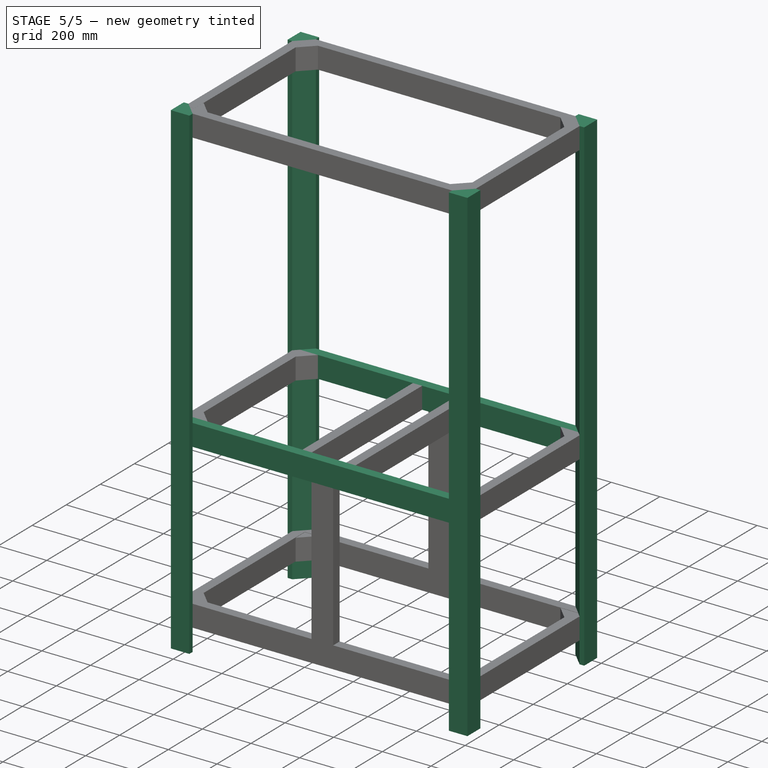
[diagram: stage 5 of 5 — iso view after this stage's code; geometry added in this stage tinted green]
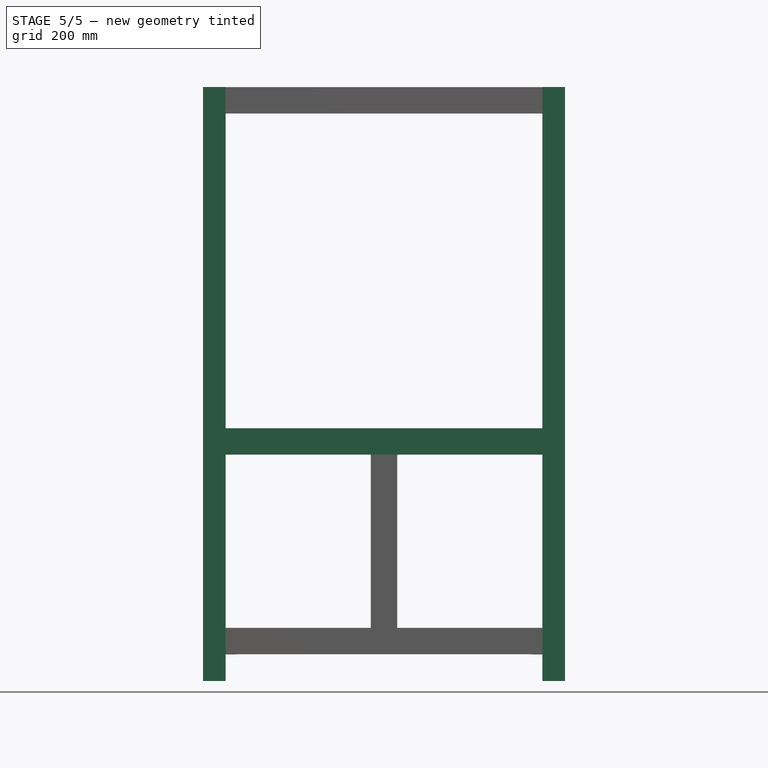
[diagram: stage 5 of 5 — front view after this stage's code; geometry added in this stage tinted green]
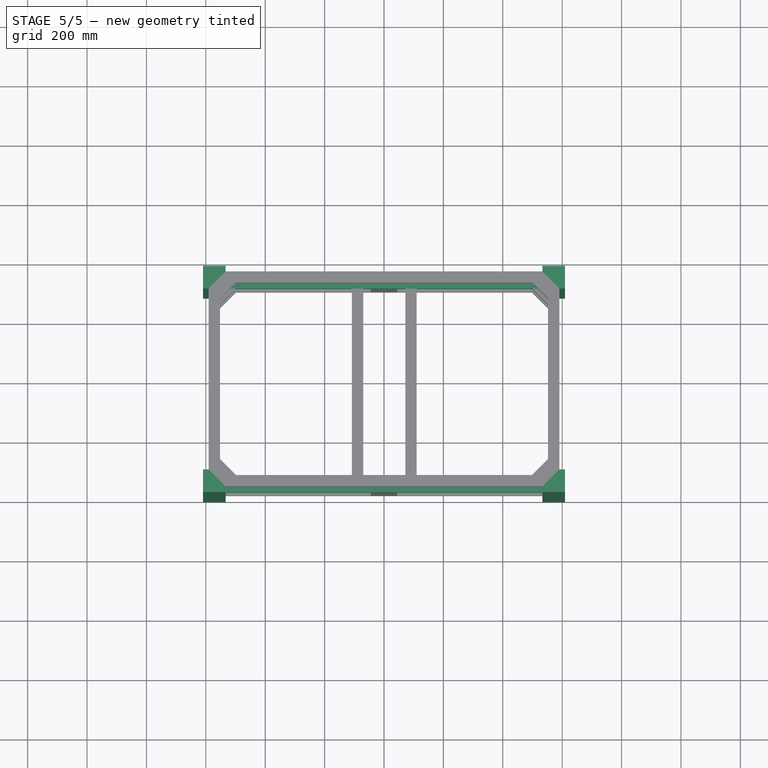
[diagram: stage 5 of 5 — top view after this stage's code; geometry added in this stage tinted green]
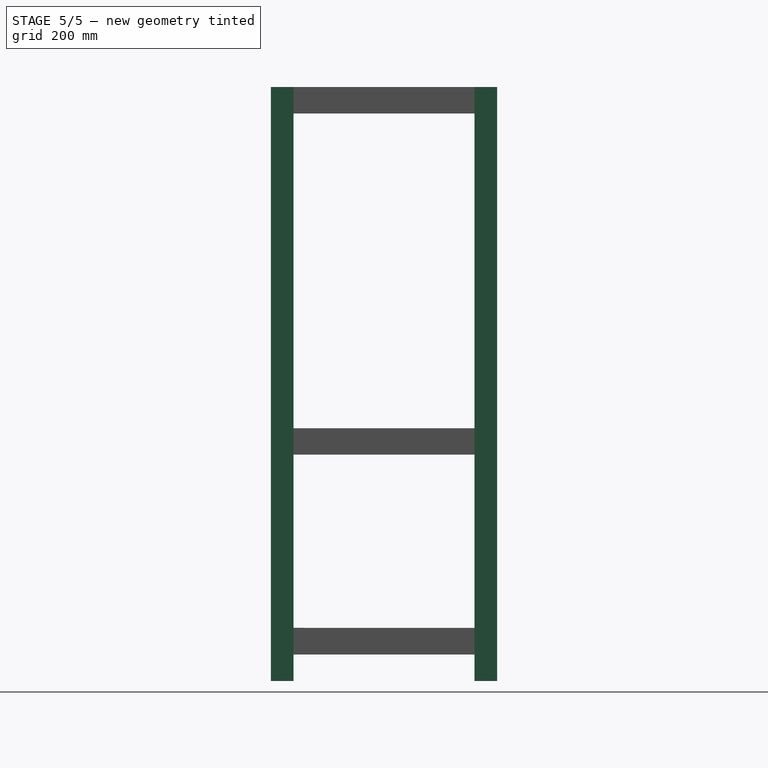
[diagram: stage 5 of 5 — right view after this stage's code; geometry added in this stage tinted green]
FEATURE [Sketcher::SketchObject] Sketch002
  sketch-geometry (5):
    g0: LineSegment StartX=-533.4 StartY=762 StartZ=0 EndX=-533.4 EndY=742.95 EndZ=0
    g1: LineSegment StartX=-533.4 StartY=742.95 StartZ=0 EndX=-590.55 EndY=685.8 EndZ=0
    g2: LineSegment StartX=-590.55 StartY=685.8 StartZ=0 EndX=-609.6 EndY=685.8 EndZ=0
    g3: LineSegment StartX=-609.6 StartY=685.8 StartZ=0 EndX=-609.6 EndY=762 EndZ=0
    g4: LineSegment StartX=-609.6 StartY=762 StartZ=0 EndX=-533.4 EndY=762 EndZ=0
  constraints (16):
    c: Coincident(g0,g1)
    c: Coincident(g1,g2)
    c: Coincident(g2,g3)
    c: Coincident(g3,g4)
    c: Vertical(g3)
    c: Vertical(g0)
    c: DistanceY(g0) = -19.05
    c: Coincident(g4,g0)
    c: Horizontal(g4)
    c: Horizontal(g2)
    c: Angle(g1,g2) = 2.35619
    c: Equal(g2,g0)
    c: Equal(g4,g3)
    c: DistanceX(g4) = 76.2
    c: DistanceY(g-1,g3) = 762
    c: DistanceX(g-1,g3) = -609.6
FEATURE [PartDesign::Pad] Pad002  label="Back Left Corner"
  Length = 2000
  Length2 = 100
  Sketch = -> Sketch002
  Type = 0
FEATURE [Sketcher::SketchObject] Sketch003
  sketch-geometry (5):
    g0: LineSegment StartX=-609.6 StartY=76.2 StartZ=0 EndX=-609.6 EndY=0 EndZ=0
    g1: LineSegment StartX=-609.6 StartY=0 StartZ=0 EndX=-533.4 EndY=0 EndZ=0
    g2: LineSegment StartX=-533.4 StartY=0 StartZ=0 EndX=-533.4 EndY=19.05 EndZ=0
    g3: LineSegment StartX=-533.4 StartY=19.05 StartZ=0 EndX=-590.55 EndY=76.2 EndZ=0
    g4: LineSegment StartX=-590.55 StartY=76.2 StartZ=0 EndX=-609.6 EndY=76.2 EndZ=0
  constraints (15):
    c: Coincident(g0,g1)
    c: Coincident(g1,g2)
    c: Coincident(g2,g3)
    c: Coincident(g3,g4)
    c: Coincident(g0,g4)
    c: Vertical(g2)
    c: Vertical(g0)
    c: Horizontal(g1)
    c: Horizontal(g4)
    c: Equal(g4,g2)
    c: Equal(g0,g1)
    c: DistanceX(g4) = -19.05
    c: DistanceY(g0) = -76.2
    c: DistanceX(g-1,g0) = -609.6
    c: PointOnObject(g0,g-1)
FEATURE [PartDesign::Pad] Pad003  label="Front Left Corner"
  Length = 2000
  Length2 = 100
  Sketch = -> Sketch003
  Type = 0
FEATURE [Sketcher::SketchObject] Sketch004
  sketch-geometry (5):
    g0: LineSegment StartX=533.4 StartY=19.05 StartZ=0 EndX=533.4 EndY=0 EndZ=0
    g1: LineSegment StartX=533.4 StartY=0 StartZ=0 EndX=609.6 EndY=0 EndZ=0
    g2: LineSegment StartX=609.6 StartY=0 StartZ=0 EndX=609.6 EndY=76.2 EndZ=0
    g3: LineSegment StartX=609.6 StartY=76.2 StartZ=0 EndX=590.55 EndY=76.2 EndZ=0
    g4: LineSegment StartX=590.55 StartY=76.2 StartZ=0 EndX=533.4 EndY=19.05 EndZ=0
  constraints (16):
    c: Coincident(g0,g1)
    c: Coincident(g1,g2)
    c: Coincident(g2,g3)
    c: Coincident(g3,g4)
    c: Coincident(g4,g0)
    c: Vertical(g2)
    c: Vertical(g0)
    c: Horizontal(g3)
    c: Horizontal(g1)
    c: Equal(g2,g1)
    c: Equal(g0,g3)
    c: DistanceX(g3) = -19.05
    c: Equal(g1,g2)
    c: DistanceY(g2) = 76.2
    c: PointOnObject(g1,g-1)
    c: DistanceX(g-1,g1) = 609.6
FEATURE [PartDesign::Pad] Pad004  label="Front Right Corner"
  Length = 2000
  Length2 = 100
  Sketch = -> Sketch004
  Type = 0
FEATURE [Sketcher::SketchObject] Sketch005
  sketch-geometry (5):
    g0: LineSegment StartX=533.4 StartY=762 StartZ=0 EndX=609.6 EndY=762 EndZ=0
    g1: LineSegment StartX=609.6 StartY=762 StartZ=0 EndX=609.6 EndY=685.8 EndZ=0
    g2: LineSegment StartX=609.6 StartY=685.8 StartZ=0 EndX=590.55 EndY=685.8 EndZ=0
    g3: LineSegment StartX=590.55 StartY=685.8 StartZ=0 EndX=533.4 EndY=742.95 EndZ=0
    g4: LineSegment StartX=533.4 StartY=742.95 StartZ=0 EndX=533.4 EndY=762 EndZ=0
  constraints (15):
    c: Coincident(g0,g1)
    c: Coincident(g1,g2)
    c: Coincident(g2,g3)
    c: Coincident(g3,g4)
    c: Coincident(g4,g0)
    c: Horizontal(g0)
    c: Horizontal(g2)
    c: Vertical(g1)
    c: Vertical(g4)
    c: Equal(g2,g4)
    c: DistanceY(g4) = 19.05
    c: DistanceY(g1) = -76.2
    c: Equal(g0,g1)
    c: DistanceX(g-1,g0) = 609.6
    c: DistanceY(g-1,g0) = 762
FEATURE [PartDesign::Pad] Pad005  label="Back Right Corner"
  Length = 2000
  Length2 = 100
  Sketch = -> Sketch005
  Type = 0
FEATURE [Sketcher::SketchObject] Sketch009
  Placement = pos=(0,0,762) rot=(0,0,1;0rad)
  sketch-geometry (4):
    g0: LineSegment StartX=-533.4 StartY=742.95 StartZ=0 EndX=-571.5 EndY=704.85 EndZ=0
    g1: LineSegment StartX=-571.5 StartY=704.85 StartZ=0 EndX=571.5 EndY=704.85 EndZ=0
    g2: LineSegment StartX=571.5 StartY=704.85 StartZ=0 EndX=533.4 EndY=742.95 EndZ=0
    g3: LineSegment StartX=533.4 StartY=742.95 StartZ=0 EndX=-533.4 EndY=742.95 EndZ=0
  constraints (12):
    c: Coincident(g0,g1)
    c: Coincident(g1,g2)
    c: Coincident(g2,g3)
    c: Coincident(g3,g0)
    c: Horizontal(g1)
    c: Horizontal(g3)
    c: Symmetric(g0,g1,g-2)
    c: Angle(g2,g-1) = 0.785398
    c: Angle(g-1,g0) = 0.785398
    c: DistanceY(g1,g2) = 38.1
    c: DistanceY(g-1,g2) = 742.95
    c: DistanceX(g3) = -1066.8
FEATURE [PartDesign::Pad] Pad009  label="Mid Back"
  Length = 88.9
  Length2 = 100
  Placement = pos=(0,0,762) rot=(0,0,1;0rad)
  Sketch = -> Sketch009
  Type = 0
FEATURE [Sketcher::SketchObject] Sketch010
  Placement = pos=(0,0,762) rot=(0,0,1;0rad)
  sketch-geometry (4):
    g0: LineSegment StartX=-571.5 StartY=57.15 StartZ=0 EndX=-533.4 EndY=19.05 EndZ=0
    g1: LineSegment StartX=-533.4 StartY=19.05 StartZ=0 EndX=533.4 EndY=19.05 EndZ=0
    g2: LineSegment StartX=533.4 StartY=19.05 StartZ=0 EndX=571.5 EndY=57.15 EndZ=0
    g3: LineSegment StartX=571.5 StartY=57.15 StartZ=0 EndX=-571.5 EndY=57.15 EndZ=0
  constraints (12):
    c: Coincident(g0,g1)
    c: Coincident(g1,g2)
    c: Coincident(g2,g3)
    c: Coincident(g3,g0)
    c: Horizontal(g1)
    c: Horizontal(g3)
    c: Symmetric(g0,g1,g-2)
    c: Angle(g2,g-1) = 2.35619
    c: Angle(g-1,g0) = 2.35619
    c: DistanceX(g1) = 1066.8
    c: DistanceY(g-1,g0) = 19.05
    c: DistanceY(g1,g2) = 38.1
FEATURE [PartDesign::Pad] Pad010  label="Mid Front"
  Length = 88.9
  Length2 = 100
  Placement = pos=(0,0,762) rot=(0,0,1;0rad)
  Sketch = -> Sketch010
  Type = 0
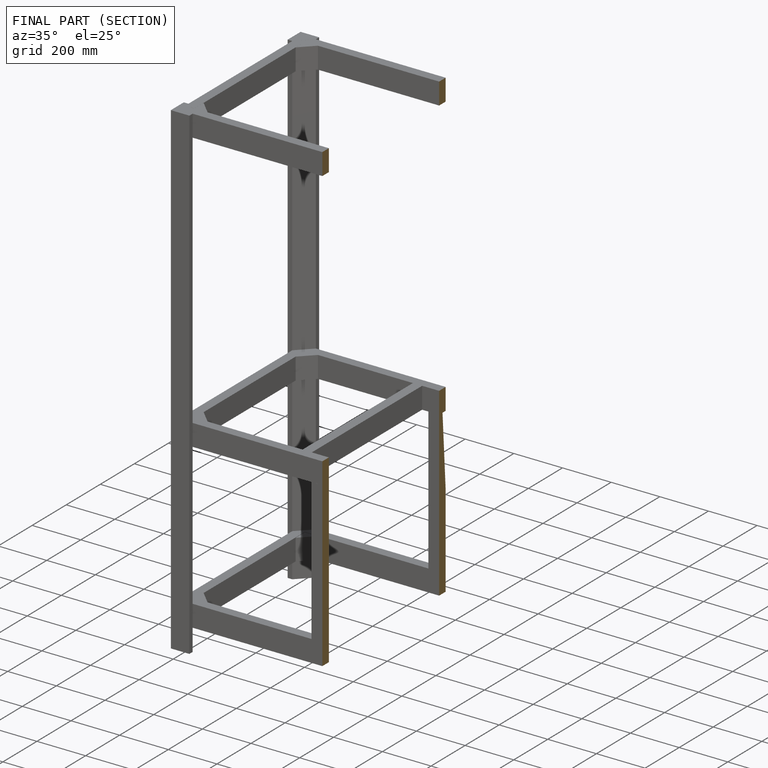
[diagram: finished part — half-section view (interior)]
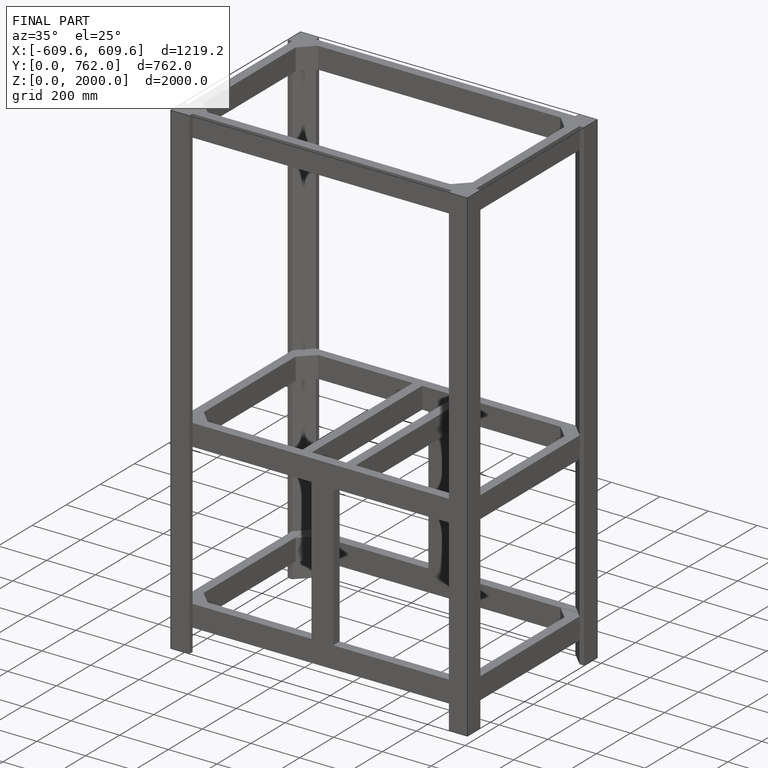
[diagram: finished part — iso view with bounding-box wireframe]
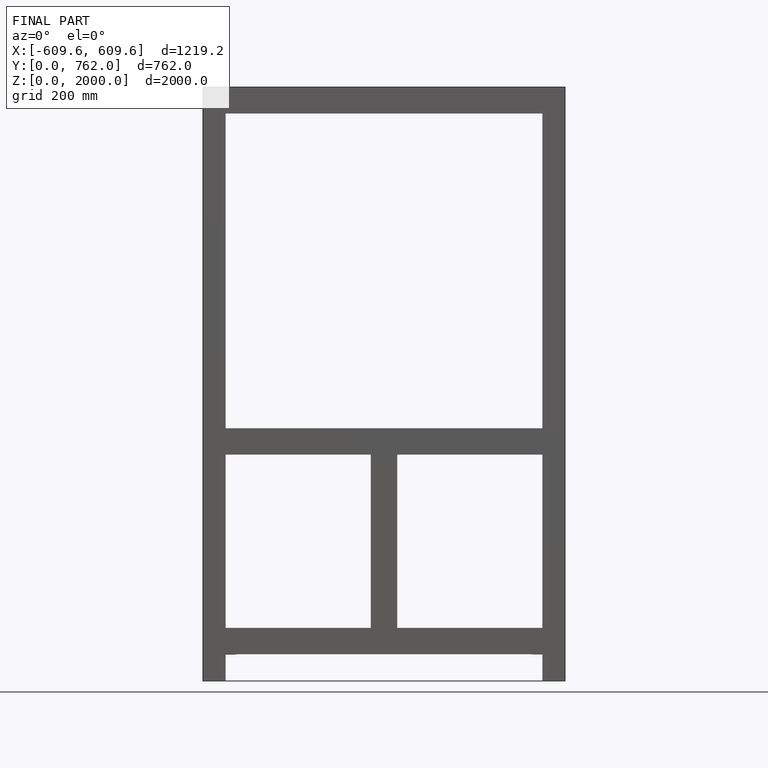
[diagram: finished part — front view with bounding-box wireframe]
